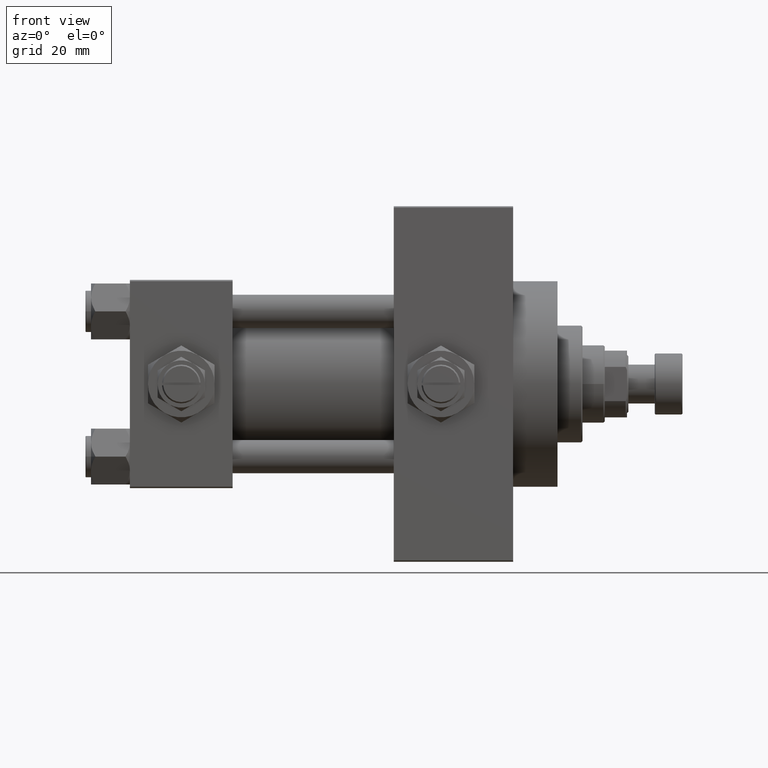
[diagram: clean part render]
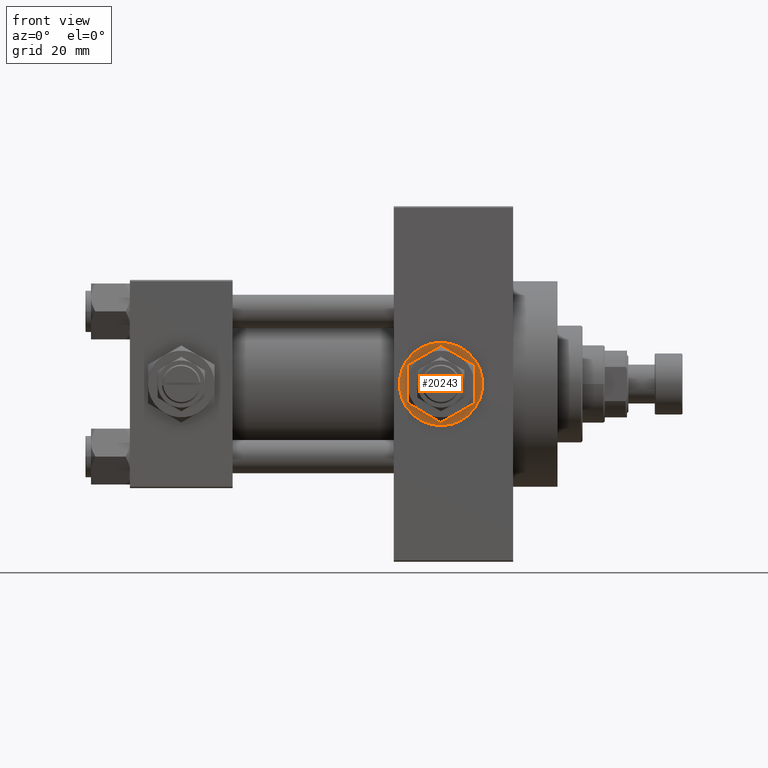
[diagram: same view with one face highlighted and labeled with its STEP entity id]
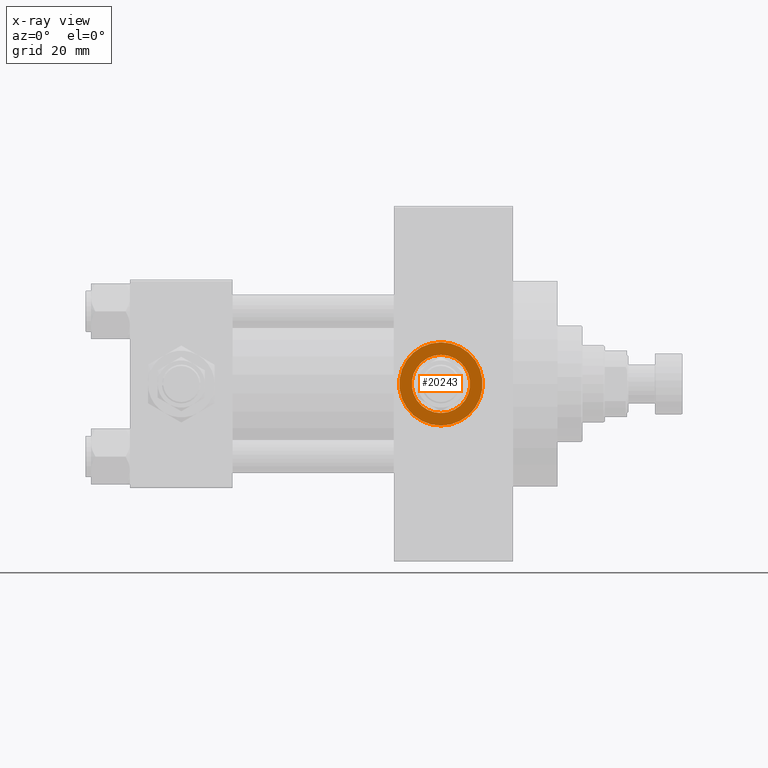
[diagram: x-ray of the same camera — body ghosted, the highlighted face saturated]
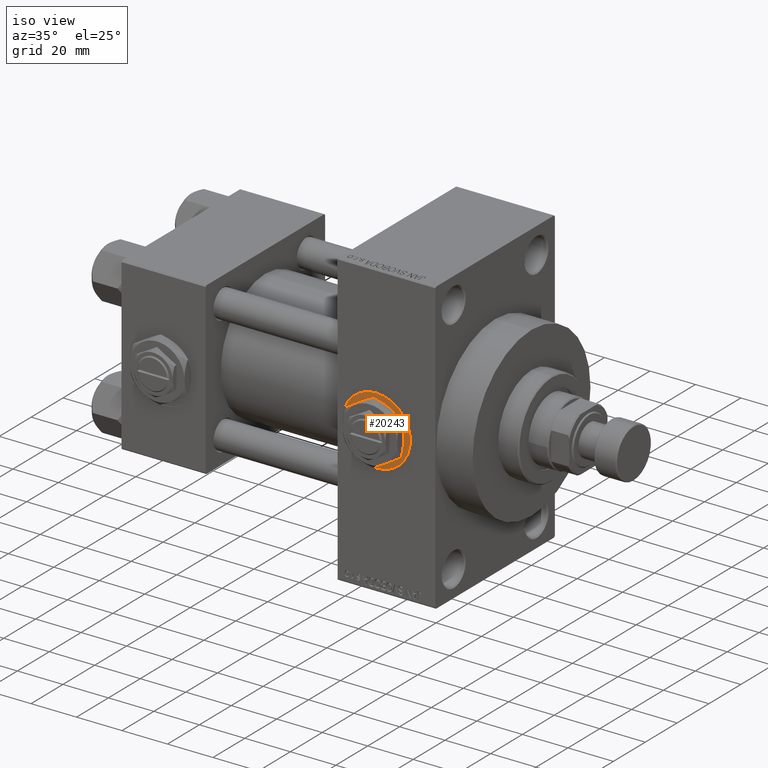
[diagram: same view with one face highlighted and labeled with its STEP entity id]
A machine part, front view. The second image highlights one B-rep face of the part: STEP entity #20243.
The next image is the same camera in x-ray: the body ghosted, the highlighted face saturated — about 0% of this face is hidden behind the body in this view.
A second angle (iso view) of the same face is appended — the face is thin or edge-on in the first view.
In plain terms, the highlighted planar face has unit normal (0, -1, -0).
Its self-contained STEP definition (entity closure, byte-faithful):
#555 = CIRCLE ( 'NONE', #21464, 15.00000000000001243 ) ;
#1912 = EDGE_CURVE ( 'NONE', #45647, #22138, #3332, .T. ) ;
#3332 = CIRCLE ( 'NONE', #37855, 10.48000000000000043 ) ;
#3573 = AXIS2_PLACEMENT_3D ( 'NONE', #34002, #19158, #22687 ) ;
#5311 = CARTESIAN_POINT ( 'NONE',  ( 112.0000000000000000, -37.29999999999999005, 15.00000000000001243 ) ) ;
#5343 = DIRECTION ( 'NONE',  ( 0.000000000000000000, -1.000000000000000000, -8.673617379884036705E-17 ) ) ;
#6197 = CIRCLE ( 'NONE', #28680, 10.48000000000000043 ) ;
#10505 = CARTESIAN_POINT ( 'NONE',  ( 112.0000000000000000, -37.29999999999999005, 1.734723475976808635E-17 ) ) ;
#11562 = CIRCLE ( 'NONE', #3573, 15.00000000000001243 ) ;
#13470 = CARTESIAN_POINT ( 'NONE',  ( 112.0000000000000000, -37.29999999999999005, 10.48000000000000043 ) ) ;
#14051 = VERTEX_POINT ( 'NONE', #29207 ) ;
#19158 = DIRECTION ( 'NONE',  ( 0.000000000000000000, -1.000000000000000000, -8.673617379884036705E-17 ) ) ;
#20243 = ADVANCED_FACE ( 'NONE', ( #31060, #23042 ), #38853, .T. ) ;
#20306 = CARTESIAN_POINT ( 'NONE',  ( 112.0000000000000000, -37.29999999999999005, -10.48000000000000043 ) ) ;
#21171 = DIRECTION ( 'NONE',  ( 0.000000000000000000, 0.000000000000000000, -1.000000000000000000 ) ) ;
#21188 = DIRECTION ( 'NONE',  ( 0.000000000000000000, -1.000000000000000000, -8.673617379884036705E-17 ) ) ;
#21464 = AXIS2_PLACEMENT_3D ( 'NONE', #25478, #21188, #36518 ) ;
#22138 = VERTEX_POINT ( 'NONE', #13470 ) ;
#22687 = DIRECTION ( 'NONE',  ( 0.000000000000000000, 0.000000000000000000, -1.000000000000000000 ) ) ;
#23042 = FACE_OUTER_BOUND ( 'NONE', #48455, .T. ) ;
#25478 = CARTESIAN_POINT ( 'NONE',  ( 112.0000000000000000, -37.29999999999999005, 1.734723475976807403E-17 ) ) ;
#25873 = DIRECTION ( 'NONE',  ( 0.000000000000000000, -1.000000000000000000, -8.673617379884036705E-17 ) ) ;
#26081 = ORIENTED_EDGE ( 'NONE', *, *, #33719, .T. ) ;
#27528 = EDGE_CURVE ( 'NONE', #14051, #49363, #11562, .T. ) ;
#28680 = AXIS2_PLACEMENT_3D ( 'NONE', #10505, #25873, #41204 ) ;
#29146 = AXIS2_PLACEMENT_3D ( 'NONE', #38119, #35084, #31302 ) ;
#29207 = CARTESIAN_POINT ( 'NONE',  ( 112.0000000000000000, -37.29999999999999005, -15.00000000000001243 ) ) ;
#31060 = FACE_BOUND ( 'NONE', #42358, .T. ) ;
#31302 = DIRECTION ( 'NONE',  ( 0.000000000000000000, 8.673617379884036705E-17, -1.000000000000000000 ) ) ;
#33299 = ORIENTED_EDGE ( 'NONE', *, *, #34049, .F. ) ;
#33719 = EDGE_CURVE ( 'NONE', #49363, #14051, #555, .T. ) ;
#34002 = CARTESIAN_POINT ( 'NONE',  ( 112.0000000000000000, -37.29999999999999005, 1.734723475976807403E-17 ) ) ;
#34049 = EDGE_CURVE ( 'NONE', #22138, #45647, #6197, .T. ) ;
#35084 = DIRECTION ( 'NONE',  ( 0.000000000000000000, -1.000000000000000000, -8.673617379884036705E-17 ) ) ;
#36518 = DIRECTION ( 'NONE',  ( 0.000000000000000000, 0.000000000000000000, -1.000000000000000000 ) ) ;
#37855 = AXIS2_PLACEMENT_3D ( 'NONE', #39783, #5343, #21171 ) ;
#38119 = CARTESIAN_POINT ( 'NONE',  ( 112.0000000000000000, -37.29999999999999005, 1.734723475976807403E-17 ) ) ;
#38853 = PLANE ( 'NONE',  #29146 ) ;
#39783 = CARTESIAN_POINT ( 'NONE',  ( 112.0000000000000000, -37.29999999999999005, 1.734723475976808635E-17 ) ) ;
#39845 = ORIENTED_EDGE ( 'NONE', *, *, #27528, .T. ) ;
#41204 = DIRECTION ( 'NONE',  ( 0.000000000000000000, 0.000000000000000000, -1.000000000000000000 ) ) ;
#42358 = EDGE_LOOP ( 'NONE', ( #43373, #33299 ) ) ;
#43373 = ORIENTED_EDGE ( 'NONE', *, *, #1912, .F. ) ;
#45647 = VERTEX_POINT ( 'NONE', #20306 ) ;
#48455 = EDGE_LOOP ( 'NONE', ( #39845, #26081 ) ) ;
#49363 = VERTEX_POINT ( 'NONE', #5311 ) ;